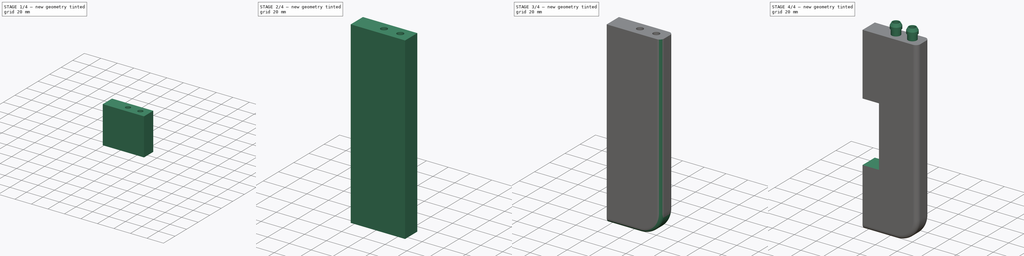
[diagram: build sequence overview — one tinted view per stage of 4, left to right]
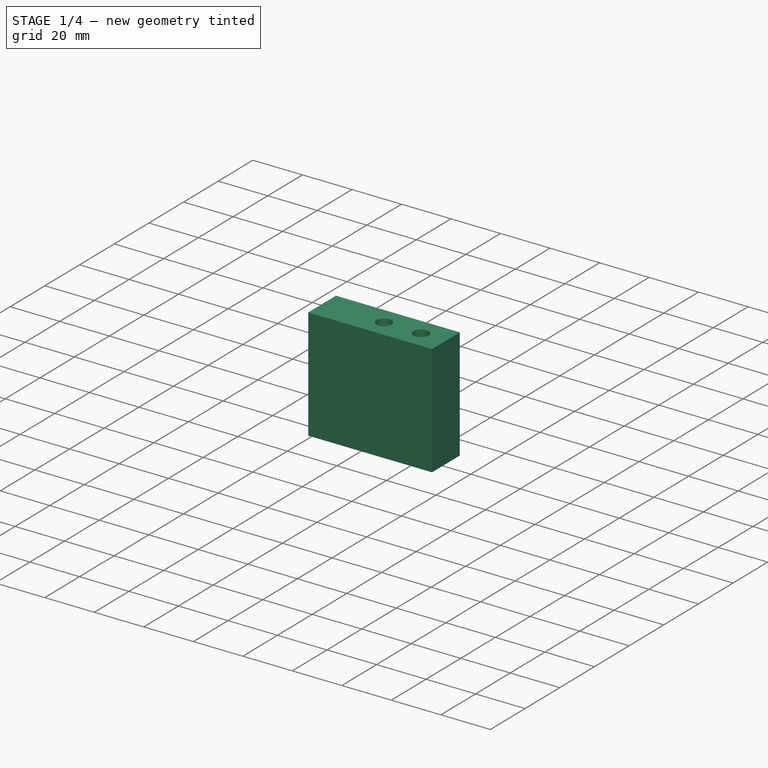
[diagram: stage 1 of 4 — iso view after this stage's code; geometry added in this stage tinted green]
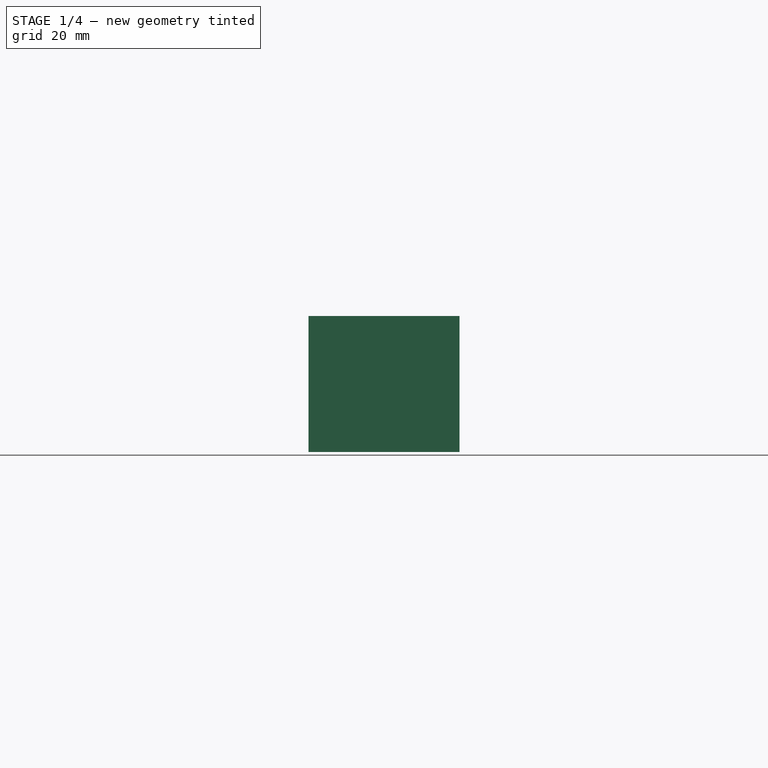
[diagram: stage 1 of 4 — front view after this stage's code; geometry added in this stage tinted green]
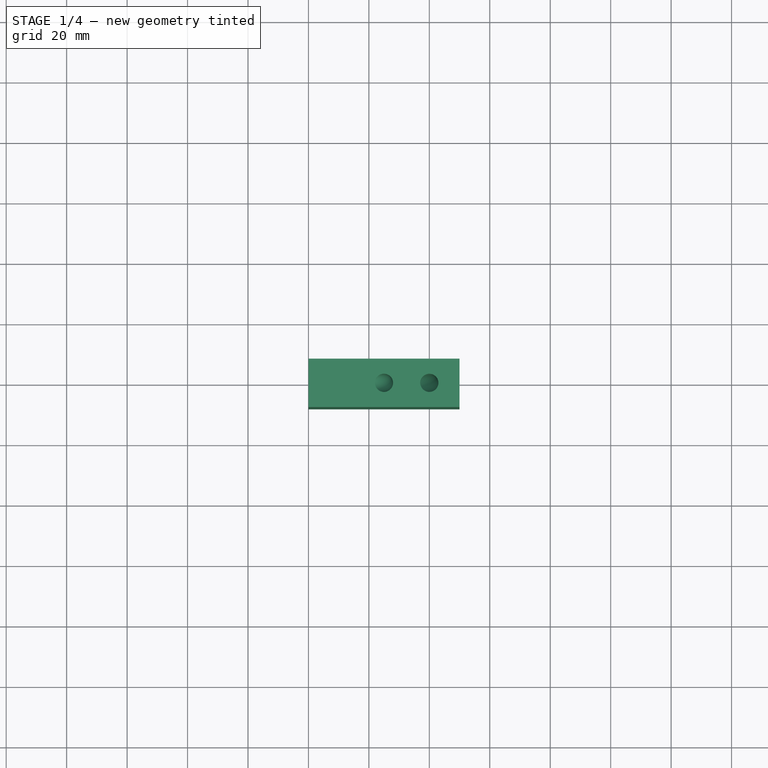
[diagram: stage 1 of 4 — top view after this stage's code; geometry added in this stage tinted green]
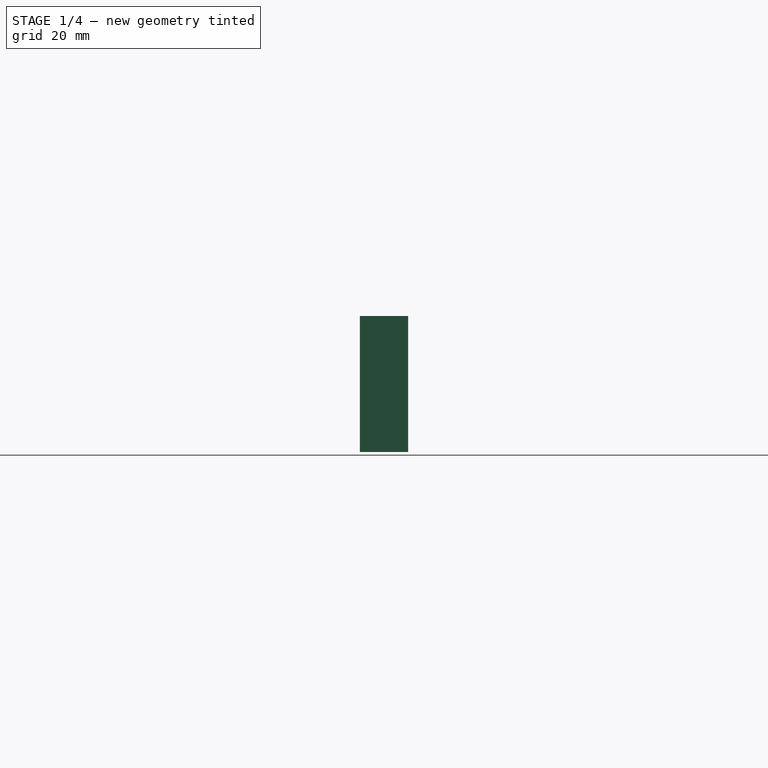
[diagram: stage 1 of 4 — right view after this stage's code; geometry added in this stage tinted green]
FCSTD DOCUMENT  (FreeCAD 2023.521R14555 (Git shallow))
Label: Tubing
License: All rights reserved
LicenseURL: https://en.wikipedia.org/wiki/All_rights_reserved
objects: Sketcher::SketchObject×14, PartDesign::AdditivePipe×4, PartDesign::Pad×2, PartDesign::Fillet×2, PartDesign::Pocket×2, PartDesign::Line×2, PartDesign::Revolution×2, PartDesign::Body×1
note: 67 computed .brp shape members not serialized (recipe doc carries the construction recipe); baked Part::Feature solids carry a one-line shape summary decoded from their .brp

FEATURE [Sketcher::SketchObject] Sketch
  ArcFitTolerance = 1e-06
  AttachmentSupport = -> [XZ_Plane]
  ExternalBSplineMaxDegree = 5
  ExternalBSplineTolerance = 0.0001
  FixShape = 1
  FullyConstrained = true
  InternalTolerance = 1e-06
  InvalidShape = false
  MakeInternals = false
  MapMode = 5
  Placement = pos=(0,0,0) rot=(1,0,0;1.5708rad)
  Support = -> [XZ_Plane]
  TreeRank = 11
  ValidateShape = false
  sketch-geometry (4):
    g0: LineSegment StartX=0 StartY=0 StartZ=0 EndX=50 EndY=0 EndZ=0
    g1: LineSegment StartX=50 StartY=0 StartZ=0 EndX=50 EndY=45 EndZ=0
    g2: LineSegment StartX=50 StartY=45 StartZ=0 EndX=0 EndY=45 EndZ=0
    g3: LineSegment StartX=0 StartY=45 StartZ=0 EndX=0 EndY=0 EndZ=0
  constraints (11):
    c: Coincident(g0,g1)
    c: Coincident(g1,g2)
    c: Coincident(g2,g3)
    c: Coincident(g3,g0)
    c: Horizontal(g0)
    c: Horizontal(g2)
    c: Vertical(g1)
    c: Vertical(g3)
    c: Coincident(g0,g-1)
    c: DistanceX(g0,g0) = 50
    c: DistanceY(g1,g1) = 45
FEATURE [PartDesign::Pad] Pad
  AddSubType = 0
  AlongSketchNormal = false
  AutoTaperInnerAngle = true
  CheckUpToFaceLimits = true
  ClaimChildren = false
  Direction = (0,-1,-2e-16)
  Fit = 0
  FitJoin = 0
  FixShape = 1
  InnerFit = 0
  InnerFitJoin = 0
  InvalidShape = false
  Length = 16
  Length2 = 10
  Linearize = true
  Midplane = true
  NewSolid = false
  Profile = -> Sketch
  ReferenceAxis = -> Sketch [N_Axis]
  Refine = true
  Suppress = false
  TaperInnerAngle = 0
  TaperInnerAngleRev = 0
  TreeRank = 12
  Type = 0
  ValidateShape = true
  _ProfileBasedVersion = 1
FEATURE [Sketcher::SketchObject] Sketch001
  ArcFitTolerance = 1e-06
  AttachmentSupport = -> [Pad]
  ExternalBSplineMaxDegree = 5
  ExternalBSplineTolerance = 0.0001
  FixShape = 1
  FullyConstrained = true
  InternalTolerance = 1e-06
  InvalidShape = false
  MakeInternals = false
  MapMode = 5
  Placement = pos=(0,-1e-14,45) rot=(0,0,1;0rad)
  Support = -> [Pad]
  TreeRank = 13
  ValidateShape = false
  sketch-geometry (1):
    g0: Circle CenterX=25 CenterY=0 CenterZ=0 NormalX=0 NormalY=0 NormalZ=1 AngleXU=0 Radius=3
  constraints (3):
    c: PointOnObject(g0,g-1)
    c: Diameter(g0) = 6
    c: DistanceX(g-1,g0) = 25
FEATURE [Sketcher::SketchObject] Sketch002
  ArcFitTolerance = 1e-06
  AttachmentSupport = -> [XZ_Plane]
  ExternalBSplineMaxDegree = 5
  ExternalBSplineTolerance = 0.0001
  ExternalGeometry = -> [Sketch001]
  FixShape = 1
  FullyConstrained = true
  InternalTolerance = 1e-06
  InvalidShape = false
  MakeInternals = false
  MapMode = 5
  Placement = pos=(0,0,0) rot=(1,0,0;1.5708rad)
  Support = -> [XZ_Plane]
  TreeRank = 14
  ValidateShape = false
  sketch-geometry (3):
    g0: LineSegment StartX=25.0118 StartY=45 StartZ=0 EndX=25.0118 EndY=43.0118 EndZ=0
    g1: LineSegment StartX=20 StartY=38 StartZ=0 EndX=0 EndY=38 EndZ=0
    g2: ArcOfCircle CenterX=20 CenterY=43.0118 CenterZ=0 NormalX=0 NormalY=0 NormalZ=1 AngleXU=0 Radius=5.01183 StartAngle=4.71239 EndAngle=6.28319
  constraints (8):
    c: Vertical(g0)
    c: Horizontal(g1)
    c: Tangent(g1,g2) = 1.5708
    c: Tangent(g0,g2) = 1.5708
    c: Vertical(g1,g-1)
    c: Symmetric(g-3,g-3,g0)
    c: DistanceY(g1,g0) = 7
    c: DistanceX(g1,g1) = 20
FEATURE [PartDesign::AdditivePipe] Pipe
  AddSubType = 1
  AuxilleryCurvelinear = true
  AuxillerySpineTangent = false
  BaseFeature = -> Pad
  Binormal = (0,0,0)
  ClaimChildren = false
  Fit = 0
  FitJoin = 0
  FixShape = 1
  InnerFit = 0
  InnerFitJoin = 0
  InvalidShape = false
  Linearize = true
  Mode = 0
  MoveProfile = false
  NewSolid = false
  Profile = -> Sketch001
  Refine = true
  RotateProfile = false
  Spine = -> Sketch002
  SpineTangent = false
  Suppress = false
  Transformation = 0
  Transition = 1
  TreeRank = 15
  ValidateShape = true
  _ProfileBasedVersion = 2
FEATURE [Sketcher::SketchObject] Sketch003
  ArcFitTolerance = 1e-06
  AttachmentSupport = -> [Pad]
  ExternalBSplineMaxDegree = 5
  ExternalBSplineTolerance = 0.0001
  FixShape = 1
  FullyConstrained = true
  InternalTolerance = 1e-06
  InvalidShape = false
  MakeInternals = false
  MapMode = 5
  Placement = pos=(0,-1e-14,45) rot=(0,0,1;0rad)
  Support = -> [Pad]
  TreeRank = 16
  ValidateShape = false
  sketch-geometry (1):
    g0: Circle CenterX=40 CenterY=0 CenterZ=0 NormalX=0 NormalY=0 NormalZ=1 AngleXU=0 Radius=3
  constraints (3):
    c: PointOnObject(g0,g-1)
    c: Diameter(g0) = 6
    c: DistanceX(g-1,g0) = 40
FEATURE [Sketcher::SketchObject] Sketch004
  ArcFitTolerance = 1e-06
  AttachmentSupport = -> [XZ_Plane]
  ExternalBSplineMaxDegree = 5
  ExternalBSplineTolerance = 0.0001
  ExternalGeometry = -> [Sketch003]
  FixShape = 1
  FullyConstrained = true
  InternalTolerance = 1e-06
  InvalidShape = false
  MakeInternals = false
  MapMode = 5
  Placement = pos=(0,0,0) rot=(1,0,0;1.5708rad)
  Support = -> [XZ_Plane]
  TreeRank = 17
  ValidateShape = false
  sketch-geometry (3):
    g0: LineSegment StartX=40.0118 StartY=45 StartZ=0 EndX=40.0118 EndY=32.0118 EndZ=0
    g1: LineSegment StartX=20 StartY=12 StartZ=0 EndX=0 EndY=12 EndZ=0
    g2: ArcOfCircle CenterX=20 CenterY=32.0118 CenterZ=0 NormalX=0 NormalY=0 NormalZ=1 AngleXU=0 Radius=20.0118 StartAngle=4.71239 EndAngle=6.28319
  constraints (8):
    c: Vertical(g0)
    c: Horizontal(g1)
    c: Tangent(g1,g2) = 1.5708
    c: Tangent(g0,g2) = 1.5708
    c: Vertical(g1,g-1)
    c: Symmetric(g-3,g-3,g0)
    c: DistanceY(g1,g0) = 33
    c: DistanceX(g1,g1) = 20
FEATURE [PartDesign::AdditivePipe] Pipe001
  AddSubType = 1
  AuxilleryCurvelinear = true
  AuxillerySpineTangent = false
  BaseFeature = -> Pipe
  Binormal = (0,0,0)
  ClaimChildren = false
  Fit = 0
  FitJoin = 0
  FixShape = 1
  InnerFit = 0
  InnerFitJoin = 0
  InvalidShape = false
  Linearize = true
  Mode = 0
  MoveProfile = false
  NewSolid = false
  Profile = -> Sketch003
  Refine = true
  RotateProfile = false
  Spine = -> Sketch004
  SpineTangent = false
  Suppress = false
  Transformation = 0
  Transition = 1
  TreeRank = 18
  ValidateShape = true
  _ProfileBasedVersion = 2
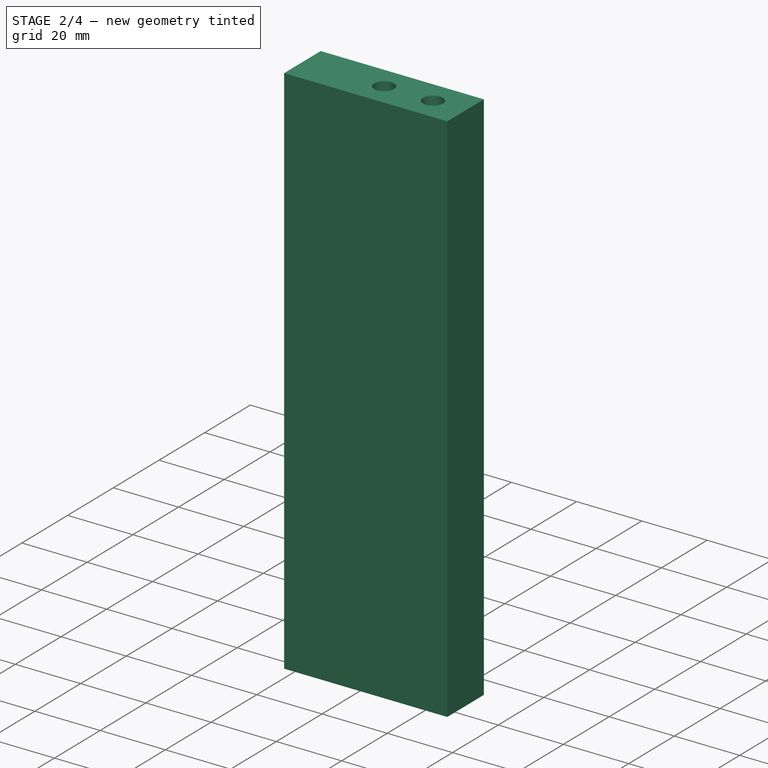
[diagram: stage 2 of 4 — iso view after this stage's code; geometry added in this stage tinted green]
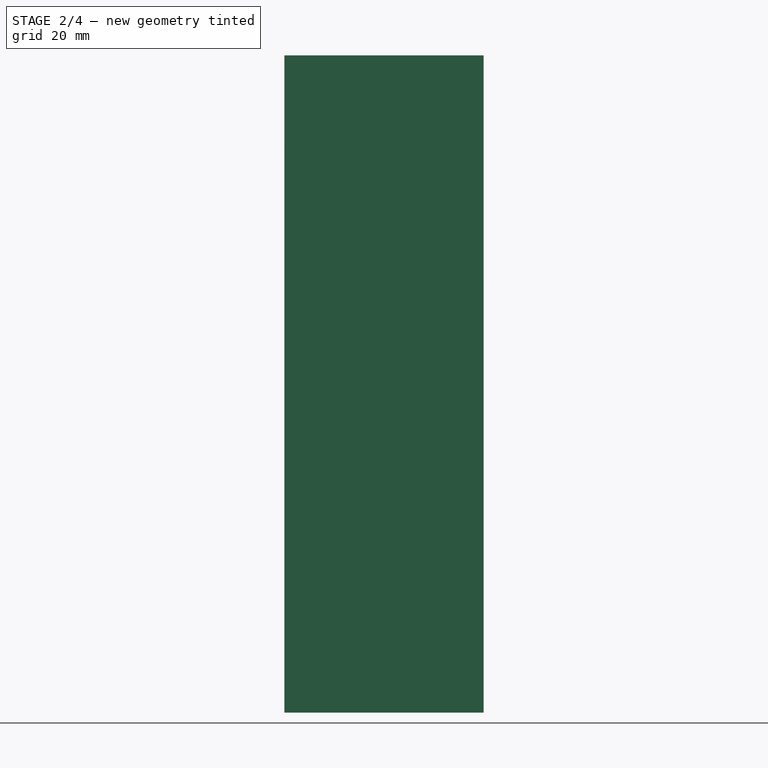
[diagram: stage 2 of 4 — front view after this stage's code; geometry added in this stage tinted green]
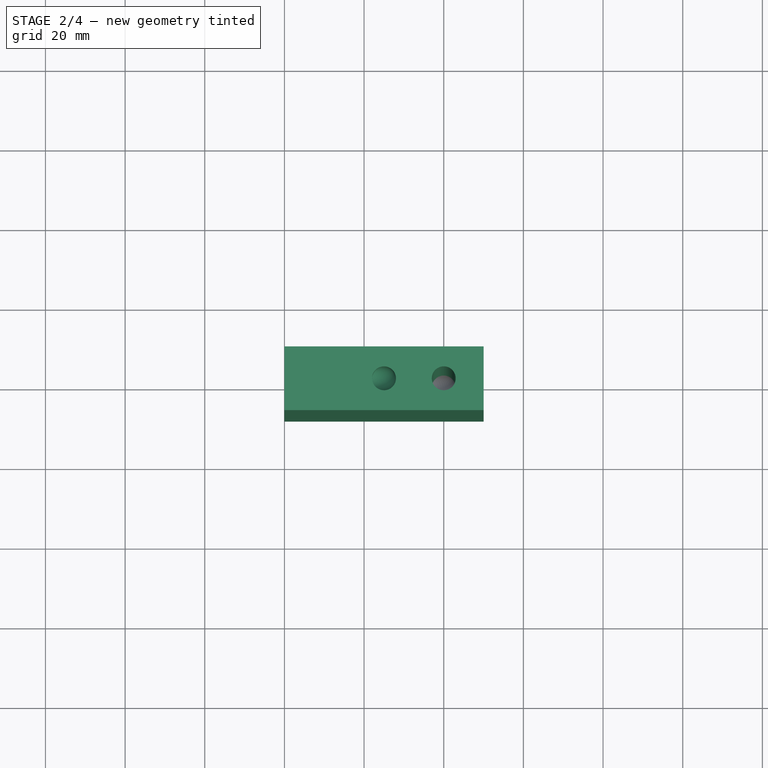
[diagram: stage 2 of 4 — top view after this stage's code; geometry added in this stage tinted green]
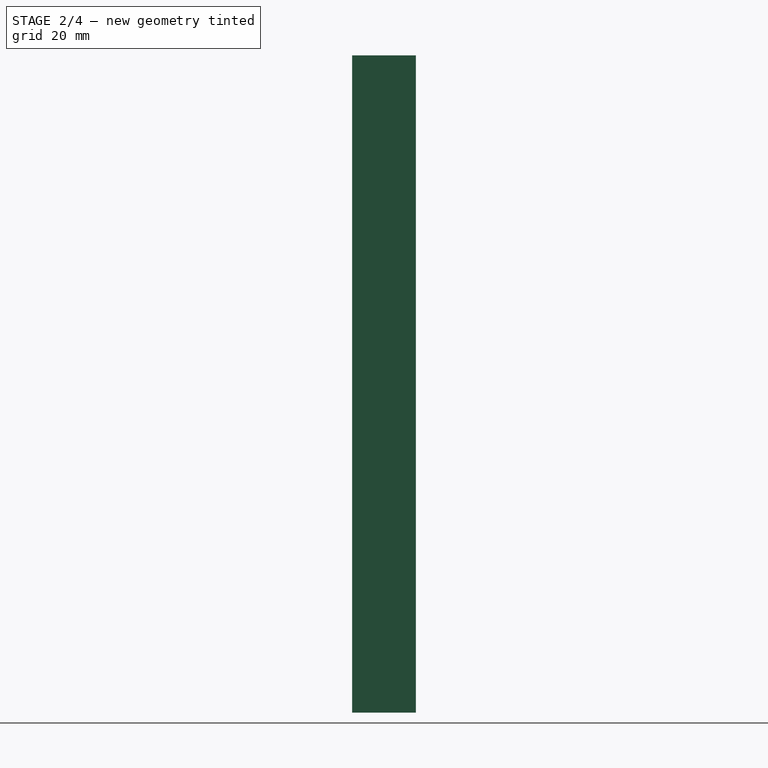
[diagram: stage 2 of 4 — right view after this stage's code; geometry added in this stage tinted green]
FEATURE [Sketcher::SketchObject] Sketch005
  ArcFitTolerance = 1e-06
  AttachmentSupport = -> [Pipe001]
  ExternalBSplineMaxDegree = 5
  ExternalBSplineTolerance = 0.0001
  ExternalGeometry = -> [Pipe001]
  FixShape = 1
  FullyConstrained = true
  InternalTolerance = 1e-06
  InvalidShape = false
  MakeInternals = false
  MapMode = 5
  Placement = pos=(0,-1e-14,45) rot=(0,0,1;0rad)
  Support = -> [Pipe001]
  TreeRank = 19
  ValidateShape = false
FEATURE [PartDesign::Pad] Pad001
  AddSubType = 0
  AlongSketchNormal = false
  AutoTaperInnerAngle = true
  BaseFeature = -> Pipe001
  CheckUpToFaceLimits = true
  ClaimChildren = false
  Direction = (0,-2e-16,1)
  Fit = 0
  FitJoin = 0
  FixShape = 1
  InnerFit = 0
  InnerFitJoin = 0
  InvalidShape = false
  Length = 120
  Length2 = 10
  Linearize = true
  NewSolid = false
  Profile = -> Sketch005
  ReferenceAxis = -> Sketch005 [N_Axis]
  Refine = true
  Suppress = false
  TaperInnerAngle = 0
  TaperInnerAngleRev = 0
  TreeRank = 20
  Type = 0
  ValidateShape = true
  _ProfileBasedVersion = 1
FEATURE [Sketcher::SketchObject] Sketch006
  ArcFitTolerance = 1e-06
  AttachmentSupport = -> [XZ_Plane]
  ExternalBSplineMaxDegree = 5
  ExternalBSplineTolerance = 0.0001
  ExternalGeometry = -> [Sketch001,Pad001]
  FixShape = 1
  FullyConstrained = true
  InternalTolerance = 1e-06
  InvalidShape = false
  MakeInternals = false
  MapMode = 5
  Placement = pos=(0,0,0) rot=(1,0,0;1.5708rad)
  Support = -> [XZ_Plane]
  TreeRank = 25
  ValidateShape = false
  sketch-geometry (5):
    g0: LineSegment StartX=25.0118 StartY=165 StartZ=0 EndX=25.0118 EndY=154.512 EndZ=0
    g1: LineSegment StartX=20 StartY=149.5 StartZ=0 EndX=5.695e-12 EndY=149.5 EndZ=0
    g2: ArcOfCircle CenterX=20 CenterY=154.512 CenterZ=0 NormalX=0 NormalY=0 NormalZ=1 AngleXU=0 Radius=5.01183 StartAngle=4.71239 EndAngle=6.28319
    g3: GeomPoint [constr] X=1.42e-14 Y=38 Z=0
    g4: GeomPoint [constr] X=25.0118 Y=45 Z=0
  constraints (11):
    c: Vertical(g0)
    c: Horizontal(g1)
    c: Tangent(g1,g2) = 1.5708
    c: Tangent(g0,g2) = 1.5708
    c: Vertical(g1,g-1)
    c: DistanceX(g1,g1) = 20
    c: PointOnObject(g0,g-4)
    c: Symmetric(g-5,g-5,g3)
    c: Symmetric(g-3,g-3,g4)
    c: Vertical(g0,g4)
    c: DistanceY(g3,g1) = 111.5
FEATURE [Sketcher::SketchObject] Sketch007
  ArcFitTolerance = 1e-06
  AttachmentSupport = -> [Pad001]
  ExternalBSplineMaxDegree = 5
  ExternalBSplineTolerance = 0.0001
  ExternalGeometry = -> [Pipe001]
  FixShape = 1
  FullyConstrained = true
  InternalTolerance = 1e-06
  InvalidShape = false
  MakeInternals = false
  MapMode = 5
  Placement = pos=(0,0,165) rot=(0,0,1;0rad)
  Support = -> [Pad001]
  TreeRank = 24
  ValidateShape = false
FEATURE [PartDesign::AdditivePipe] Pipe002
  AddSubType = 1
  AuxilleryCurvelinear = true
  AuxillerySpineTangent = false
  BaseFeature = -> Pad001
  Binormal = (0,0,0)
  ClaimChildren = false
  Fit = 0
  FitJoin = 0
  FixShape = 1
  InnerFit = 0
  InnerFitJoin = 0
  InvalidShape = false
  Linearize = true
  Mode = 0
  MoveProfile = false
  NewSolid = false
  Profile = -> Sketch007
  Refine = true
  RotateProfile = false
  Spine = -> Sketch006
  SpineTangent = false
  Suppress = false
  Transformation = 0
  Transition = 1
  TreeRank = 26
  ValidateShape = true
  _ProfileBasedVersion = 2
FEATURE [Sketcher::SketchObject] Sketch008
  ArcFitTolerance = 1e-06
  AttachmentSupport = -> [XZ_Plane]
  ExternalBSplineMaxDegree = 5
  ExternalBSplineTolerance = 0.0001
  ExternalGeometry = -> [Sketch001,Pad001]
  FixShape = 1
  FullyConstrained = true
  InternalTolerance = 1e-06
  InvalidShape = false
  MakeInternals = false
  MapMode = 5
  Placement = pos=(0,0,0) rot=(1,0,0;1.5708rad)
  Support = -> [XZ_Plane]
  TreeRank = 27
  ValidateShape = false
  sketch-geometry (5):
    g0: LineSegment StartX=20 StartY=123.5 StartZ=0 EndX=-1.0552e-12 EndY=123.5 EndZ=0
    g1: GeomPoint [constr] X=25.0118 Y=45 Z=0
    g2: ArcOfCircle CenterX=20 CenterY=118.488 CenterZ=0 NormalX=0 NormalY=0 NormalZ=1 AngleXU=0 Radius=5.01183 StartAngle=-1.5836e-12 EndAngle=1.5708
    g3: LineSegment StartX=25.0118 StartY=118.488 StartZ=0 EndX=25.0118 EndY=45 EndZ=0
    g4: GeomPoint [constr] X=-7.1e-15 Y=12 Z=0
  constraints (10):
    c: Horizontal(g0)
    c: Vertical(g0,g-1)
    c: DistanceX(g0,g0) = 20
    c: Symmetric(g-3,g-3,g1)
    c: Tangent(g2,g0) = -1.5708
    c: Tangent(g3,g2) = 1.5708
    c: Vertical(g3)
    c: Coincident(g1,g3)
    c: Symmetric(g-5,g-5,g4)
    c: DistanceY(g4,g0) = 111.5
FEATURE [Sketcher::SketchObject] Sketch009
  ArcFitTolerance = 1e-06
  AttachmentSupport = -> [Pipe002]
  ExternalBSplineMaxDegree = 5
  ExternalBSplineTolerance = 0.0001
  ExternalGeometry = -> [Pipe002]
  FixShape = 1
  FullyConstrained = true
  InternalTolerance = 1e-06
  InvalidShape = false
  MakeInternals = false
  MapMode = 5
  Placement = pos=(0,0,0) rot=(0.57735,-0.57735,-0.57735;2.0944rad)
  Support = -> [Pipe002]
  TreeRank = 28
  ValidateShape = false
  sketch-geometry (1):
    g0: Circle CenterX=1.6e-15 CenterY=123.512 CenterZ=0 NormalX=0 NormalY=0 NormalZ=1 AngleXU=0 Radius=3
  constraints (3):
    c: Vertical(g-3,g0)
    c: DistanceY(g-3,g0) = 111.5
    c: Equal(g0,g-3)
FEATURE [PartDesign::AdditivePipe] Pipe003
  AddSubType = 1
  AuxilleryCurvelinear = true
  AuxillerySpineTangent = false
  BaseFeature = -> Pipe002
  Binormal = (0,0,0)
  ClaimChildren = false
  Fit = 0
  FitJoin = 0
  FixShape = 1
  InnerFit = 0
  InnerFitJoin = 0
  InvalidShape = false
  Linearize = true
  Mode = 0
  MoveProfile = false
  NewSolid = false
  Profile = -> Sketch009
  Refine = true
  RotateProfile = false
  Spine = -> Sketch008
  SpineTangent = false
  Suppress = false
  Transformation = 0
  Transition = 1
  TreeRank = 29
  ValidateShape = true
  _ProfileBasedVersion = 2
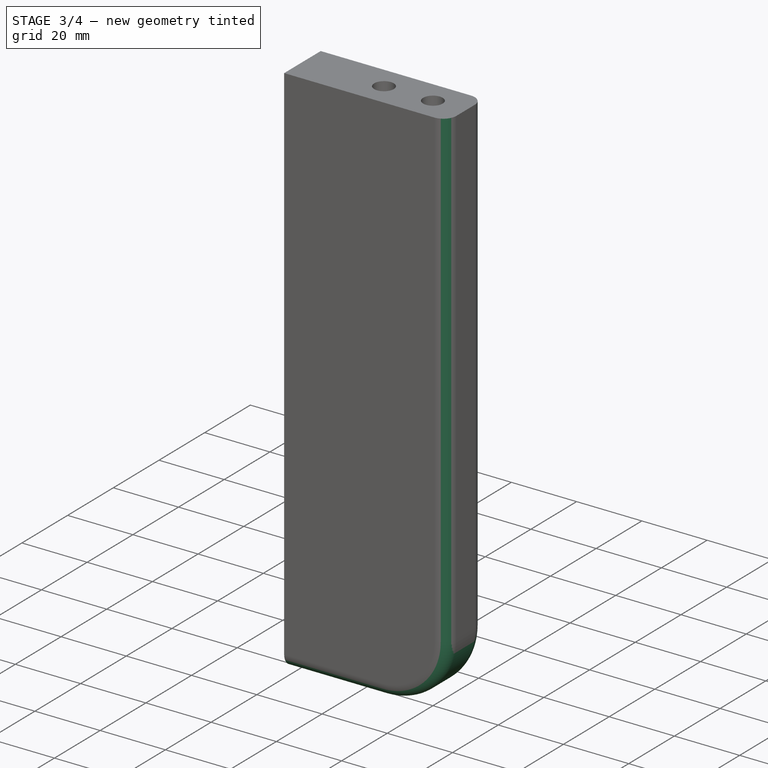
[diagram: stage 3 of 4 — iso view after this stage's code; geometry added in this stage tinted green]
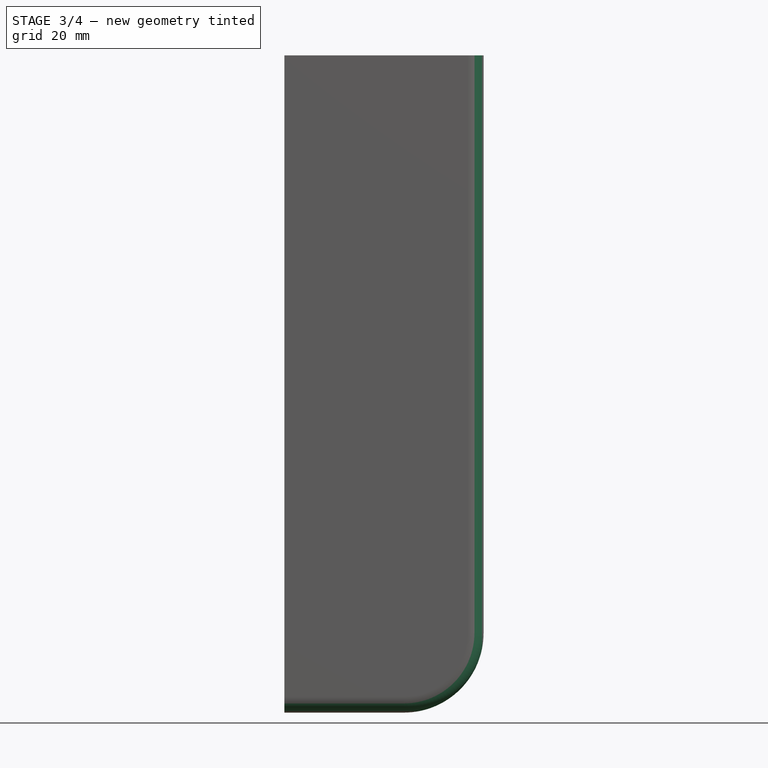
[diagram: stage 3 of 4 — front view after this stage's code; geometry added in this stage tinted green]
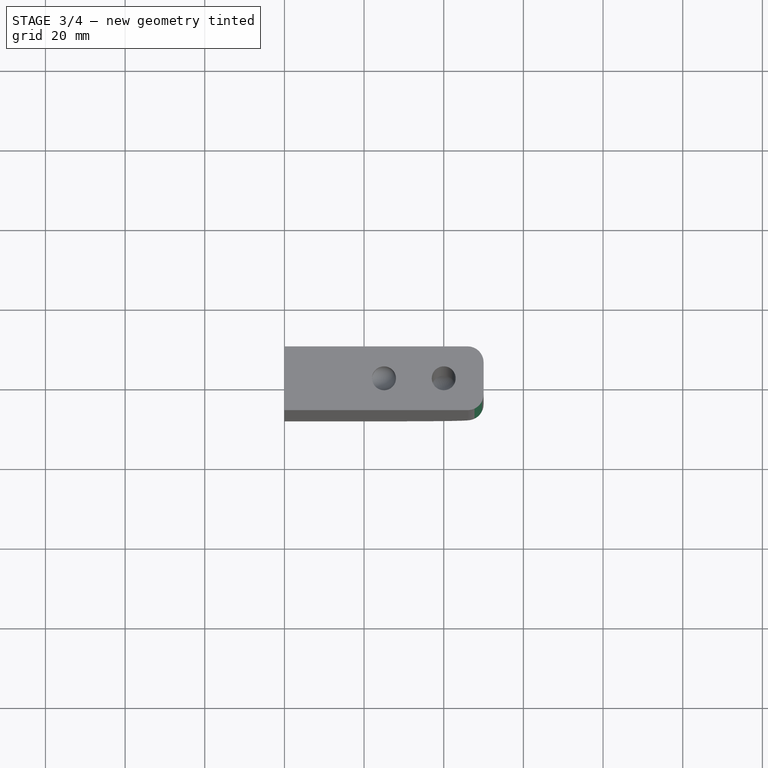
[diagram: stage 3 of 4 — top view after this stage's code; geometry added in this stage tinted green]
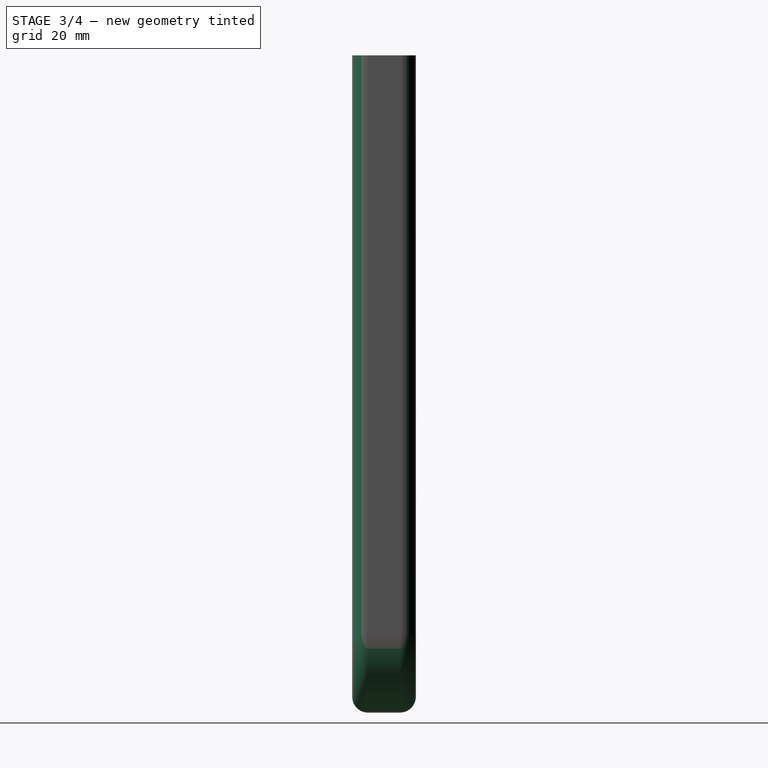
[diagram: stage 3 of 4 — right view after this stage's code; geometry added in this stage tinted green]
FEATURE [PartDesign::Fillet] Fillet
  AddSubType = 0
  Base = -> Pipe003 [Edge2]
  BaseFeature = -> Pipe003
  FixShape = 1
  InvalidShape = false
  NewSolid = false
  Radius = 20
  Refine = true
  SupportTransform = false
  Suppress = false
  TreeRank = 30
  UseAllEdges = false
  ValidateShape = true
FEATURE [PartDesign::Fillet] Fillet001
  AddSubType = 0
  Base = -> Fillet [Edge10,Edge1]
  BaseFeature = -> Fillet
  FixShape = 1
  InvalidShape = false
  NewSolid = false
  Radius = 4
  Refine = true
  SupportTransform = false
  Suppress = false
  TreeRank = 31
  UseAllEdges = false
  ValidateShape = true
FEATURE [Sketcher::SketchObject] Sketch010
  ArcFitTolerance = 1e-06
  AttachmentSupport = -> [Fillet001]
  ExternalBSplineMaxDegree = 5
  ExternalBSplineTolerance = 0.0001
  ExternalGeometry = -> [Fillet001]
  FixShape = 1
  FullyConstrained = true
  InternalTolerance = 1e-06
  InvalidShape = false
  MakeInternals = false
  MapMode = 5
  Placement = pos=(0,0,0) rot=(0.57735,-0.57735,-0.57735;2.0944rad)
  Support = -> [Fillet001]
  TreeRank = 32
  ValidateShape = false
  sketch-geometry (4):
    g0: Circle CenterX=0 CenterY=38.0118 CenterZ=0 NormalX=0 NormalY=0 NormalZ=1 AngleXU=0 Radius=5.5
    g1: Circle CenterX=0 CenterY=12.0118 CenterZ=0 NormalX=0 NormalY=0 NormalZ=1 AngleXU=0 Radius=5.5
    g2: Circle CenterX=0 CenterY=123.512 CenterZ=0 NormalX=0 NormalY=0 NormalZ=1 AngleXU=0 Radius=5.5
    g3: Circle CenterX=6.2e-15 CenterY=149.512 CenterZ=0 NormalX=0 NormalY=0 NormalZ=1 AngleXU=0 Radius=5.5
  constraints (8):
    c: Coincident(g0,g-5)
    c: Coincident(g1,g-6)
    c: Coincident(g2,g-4)
    c: Equal(g0,g1)
    c: Equal(g1,g2)
    c: Equal(g2,g3)
    c: Diameter(g2) = 11
    c: Coincident(g3,g-3)
FEATURE [PartDesign::Pocket] Pocket
  AddSubType = 1
  AlongSketchNormal = false
  AutoTaperInnerAngle = true
  BaseFeature = -> Fillet001
  CheckUpToFaceLimits = true
  ClaimChildren = false
  Direction = (1,0,0)
  Fit = 0
  FitJoin = 0
  FixShape = 1
  InnerFit = 0
  InnerFitJoin = 0
  InvalidShape = false
  Length = 20
  Length2 = 10
  Linearize = true
  NewSolid = false
  Profile = -> Sketch010
  ReferenceAxis = -> Sketch010 [N_Axis]
  Refine = true
  Suppress = false
  TaperInnerAngle = 0
  TaperInnerAngleRev = 0
  TreeRank = 33
  Type = 0
  ValidateShape = true
  _ProfileBasedVersion = 1
  _Version = 1
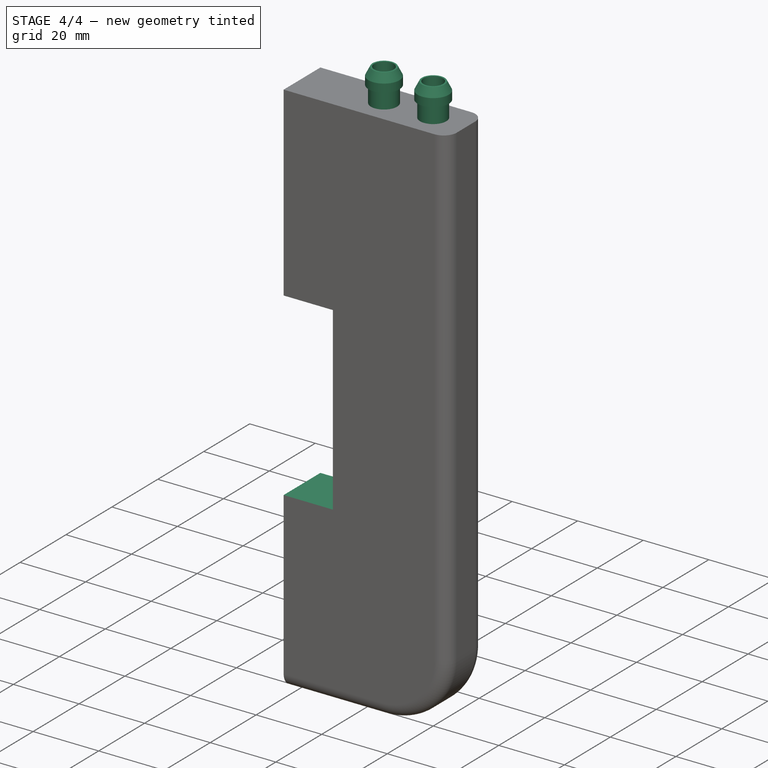
[diagram: stage 4 of 4 — iso view after this stage's code; geometry added in this stage tinted green]
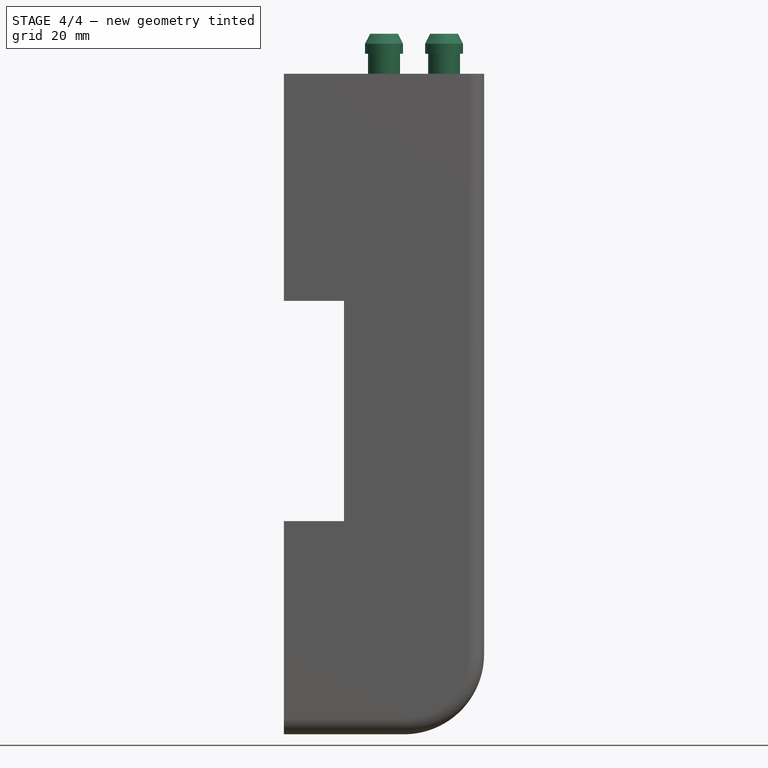
[diagram: stage 4 of 4 — front view after this stage's code; geometry added in this stage tinted green]
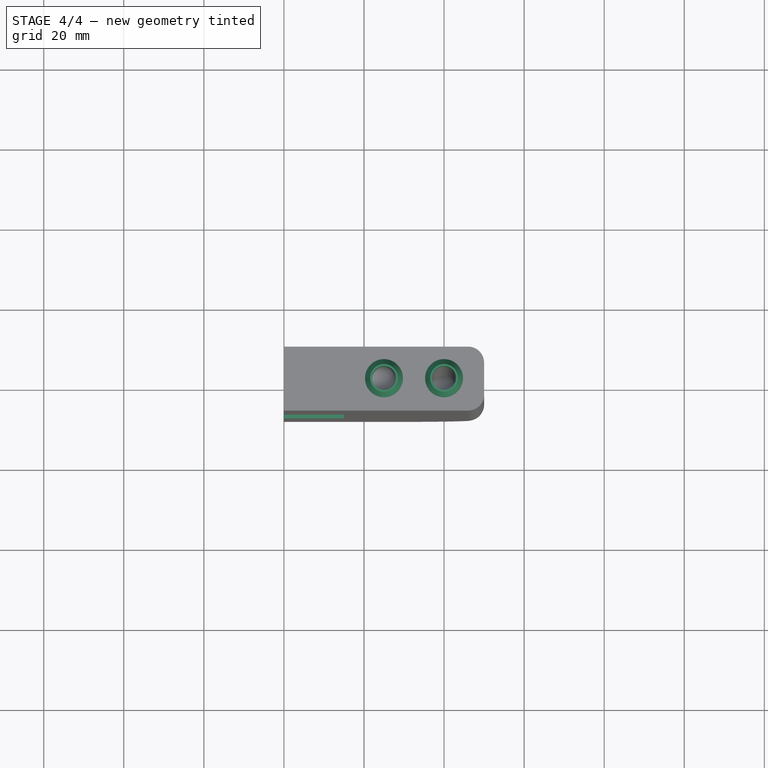
[diagram: stage 4 of 4 — top view after this stage's code; geometry added in this stage tinted green]
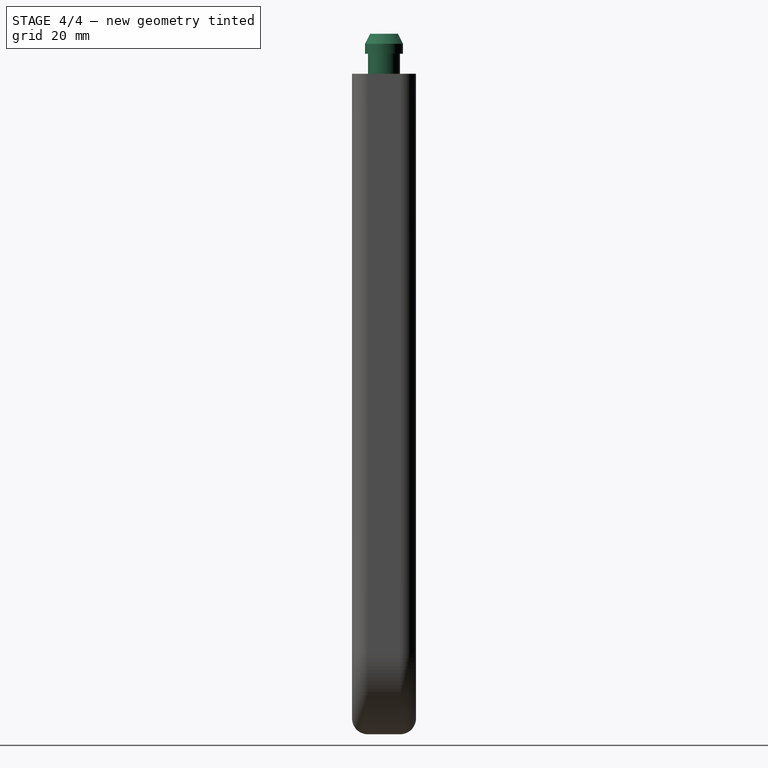
[diagram: stage 4 of 4 — right view after this stage's code; geometry added in this stage tinted green]
FEATURE [Sketcher::SketchObject] Sketch011
  ArcFitTolerance = 1e-06
  AttachmentSupport = -> [Pocket]
  ExternalBSplineMaxDegree = 5
  ExternalBSplineTolerance = 0.0001
  ExternalGeometry = -> [Pocket]
  FixShape = 1
  FullyConstrained = true
  InternalTolerance = 1e-06
  InvalidShape = false
  MakeInternals = false
  MapMode = 5
  Placement = pos=(0,-8,-1.8e-15) rot=(1,0,0;1.5708rad)
  Support = -> [Pocket]
  TreeRank = 34
  ValidateShape = false
  sketch-geometry (5):
    g0: LineSegment StartX=1.9e-14 StartY=108.262 StartZ=0 EndX=15 EndY=108.262 EndZ=0
    g1: LineSegment StartX=15 StartY=108.262 StartZ=0 EndX=15 EndY=53.2618 EndZ=0
    g2: LineSegment StartX=15 StartY=53.2618 StartZ=0 EndX=1.95e-14 EndY=53.2618 EndZ=0
    g3: LineSegment StartX=1.9e-14 StartY=53.2618 StartZ=0 EndX=1.9e-14 EndY=108.262 EndZ=0
    g4: GeomPoint [constr] X=1.9e-14 Y=80.7618 Z=0
  constraints (12):
    c: Coincident(g0,g1)
    c: Coincident(g1,g2)
    c: Coincident(g2,g3)
    c: Coincident(g3,g0)
    c: Horizontal(g0)
    c: Horizontal(g2)
    c: Vertical(g1)
    c: Vertical(g3)
    c: Symmetric(g-3,g-4,g4)
    c: Symmetric(g3,g3,g4)
    c: DistanceY(g3,g3) = 55
    c: DistanceX(g0,g0) = 15
FEATURE [PartDesign::Pocket] Pocket001
  AddSubType = 1
  AlongSketchNormal = false
  AutoTaperInnerAngle = true
  BaseFeature = -> Pocket
  CheckUpToFaceLimits = true
  ClaimChildren = false
  Direction = (0,1,2e-16)
  Fit = 0
  FitJoin = 0
  FixShape = 1
  InnerFit = 0
  InnerFitJoin = 0
  InvalidShape = false
  Length = 5
  Length2 = 10
  Linearize = true
  NewSolid = false
  Profile = -> Sketch011
  ReferenceAxis = -> Sketch011 [N_Axis]
  Refine = true
  Suppress = false
  TaperInnerAngle = 0
  TaperInnerAngleRev = 0
  TreeRank = 35
  Type = 1
  ValidateShape = true
  _ProfileBasedVersion = 1
  _Version = 1
FEATURE [Sketcher::SketchObject] Sketch013
  ArcFitTolerance = 1e-06
  AttachmentSupport = -> [XZ_Plane]
  ExternalBSplineMaxDegree = 5
  ExternalBSplineTolerance = 0.0001
  ExternalGeometry = -> [Pocket001]
  FixShape = 1
  FullyConstrained = true
  InternalTolerance = 1e-06
  InvalidShape = false
  MakeInternals = false
  MapMode = 5
  Placement = pos=(0,0,0) rot=(1,0,0;1.5708rad)
  Support = -> [XZ_Plane]
  TreeRank = 37
  ValidateShape = false
  sketch-geometry (8):
    g0: LineSegment StartX=22.0237 StartY=165 StartZ=0 EndX=21.0118 EndY=165 EndZ=0
    g1: LineSegment StartX=21.0118 StartY=165 StartZ=0 EndX=21.0118 EndY=170 EndZ=0
    g2: LineSegment StartX=21.0118 StartY=170 StartZ=0 EndX=20.2618 EndY=170 EndZ=0
    g3: LineSegment StartX=21.5237 StartY=175 StartZ=0 EndX=22.0237 EndY=175 EndZ=0
    g4: LineSegment StartX=22.0237 StartY=175 StartZ=0 EndX=22.0237 EndY=165 EndZ=0
    g5: GeomPoint [constr] X=25.0118 Y=165 Z=0
    g6: LineSegment StartX=20.2618 StartY=170 StartZ=0 EndX=20.2618 EndY=172.5 EndZ=0
    g7: LineSegment StartX=20.2618 StartY=172.5 StartZ=0 EndX=21.5237 EndY=175 EndZ=0
  constraints (21):
    c: Coincident(g0,g-3)
    c: Horizontal(g0)
    c: Vertical(g1)
    c: Coincident(g2,g1)
    c: Horizontal(g3)
    c: Coincident(g4,g3)
    c: Coincident(g4,g0)
    c: Vertical(g4)
    c: Symmetric(g-3,g-3,g5)
    c: DistanceX(g0,g5) = 4
    c: Horizontal(g2)
    c: Coincident(g6,g2)
    c: Vertical(g6)
    c: Coincident(g7,g3)
    c: DistanceY(g4,g4) = 10
    c: Coincident(g6,g7)
    c: DistanceX(g2,g5) = 4.75
    c: Coincident(g0,g1)
    c: DistanceY(g1,g1) = 5
    c: DistanceY(g6,g6) = 2.5
    c: DistanceX(g3,g3) = 0.5
FEATURE [PartDesign::Line] DatumLine
  AttacherType = Attacher::AttachEngineLine
  AttachmentSupport = -> [Pocket001]
  FixShape = 1
  InvalidShape = false
  Length = 175
  MapMode = 19
  MinimumLength = 10
  Placement = pos=(25,-1e-14,165) rot=(-1,0,0;3.14159rad)
  ResizeMode = 0
  Support = -> [Pocket001]
  TreeRank = 38
  ValidateShape = false
FEATURE [PartDesign::Line] DatumLine001
  AttacherType = Attacher::AttachEngineLine
  AttachmentSupport = -> [Pocket001]
  FixShape = 1
  InvalidShape = false
  Length = 175
  MapMode = 19
  MinimumLength = 10
  Placement = pos=(40,-3.66e-14,165) rot=(0,0,1;0rad)
  ResizeMode = 0
  Support = -> [Pocket001]
  TreeRank = 39
  ValidateShape = false
FEATURE [PartDesign::Revolution] Revolution
  AddSubType = 0
  Angle = 360
  Axis = (0,4e-16,-1)
  Base = (25,-1e-14,165)
  BaseFeature = -> Pocket001
  ClaimChildren = false
  Fit = 0
  FitJoin = 0
  FixShape = 1
  InnerFit = 0
  InnerFitJoin = 0
  InvalidShape = false
  Linearize = true
  NewSolid = false
  Profile = -> Sketch013
  ReferenceAxis = -> DatumLine
  Refine = true
  Reversed = true
  Suppress = false
  TreeRank = 40
  ValidateShape = true
  _ProfileBasedVersion = 1
FEATURE [Sketcher::SketchObject] Sketch014
  ArcFitTolerance = 1e-06
  AttachmentSupport = -> [XZ_Plane]
  ExternalBSplineMaxDegree = 5
  ExternalBSplineTolerance = 0.0001
  ExternalGeometry = -> [Pocket001]
  FixShape = 1
  FullyConstrained = true
  InternalTolerance = 1e-06
  InvalidShape = false
  MakeInternals = false
  MapMode = 5
  Placement = pos=(0,0,0) rot=(1,0,0;1.5708rad)
  Support = -> [XZ_Plane]
  TreeRank = 41
  ValidateShape = false
  sketch-geometry (8):
    g0: LineSegment StartX=37.0237 StartY=165 StartZ=0 EndX=36.0118 EndY=165 EndZ=0
    g1: LineSegment StartX=36.0118 StartY=165 StartZ=0 EndX=36.0118 EndY=170 EndZ=0
    g2: LineSegment StartX=36.0118 StartY=170 StartZ=0 EndX=35.2618 EndY=170 EndZ=0
    g3: LineSegment StartX=36.5237 StartY=175 StartZ=0 EndX=37.0237 EndY=175 EndZ=0
    g4: LineSegment StartX=37.0237 StartY=175 StartZ=0 EndX=37.0237 EndY=165 EndZ=0
    g5: GeomPoint [constr] X=40.0118 Y=165 Z=0
    g6: LineSegment StartX=35.2618 StartY=170 StartZ=0 EndX=35.2618 EndY=172.5 EndZ=0
    g7: LineSegment StartX=35.2618 StartY=172.5 StartZ=0 EndX=36.5237 EndY=175 EndZ=0
  constraints (21):
    c: Horizontal(g0)
    c: Vertical(g1)
    c: Coincident(g2,g1)
    c: Horizontal(g3)
    c: Coincident(g4,g3)
    c: Coincident(g4,g0)
    c: Vertical(g4)
    c: DistanceX(g0,g5) = 4
    c: Horizontal(g2)
    c: Coincident(g6,g2)
    c: Vertical(g6)
    c: Coincident(g7,g3)
    c: DistanceY(g4,g4) = 10
    c: Coincident(g6,g7)
    c: DistanceX(g2,g5) = 4.75
    c: Coincident(g0,g1)
    c: DistanceY(g1,g1) = 5
    c: DistanceY(g6,g6) = 2.5
    c: DistanceX(g3,g3) = 0.5
    c: Symmetric(g-3,g-3,g5)
    c: Coincident(g0,g-3)
FEATURE [PartDesign::Revolution] Revolution001
  AddSubType = 0
  Angle = 360
  Axis = (0,-4e-16,1)
  Base = (40,-3.66e-14,165)
  BaseFeature = -> Revolution
  ClaimChildren = false
  Fit = 0
  FitJoin = 0
  FixShape = 1
  InnerFit = 0
  InnerFitJoin = 0
  InvalidShape = false
  Linearize = true
  NewSolid = false
  Profile = -> Sketch014
  ReferenceAxis = -> DatumLine001
  Refine = true
  Reversed = true
  Suppress = false
  TreeRank = 42
  ValidateShape = true
  _ProfileBasedVersion = 1
FEATURE [PartDesign::Body] Body
  AutoGroupSolids = false
  ClaimAllChildren = false
  ExportMode = 0
  FixShape = 1
  Group = -> [Sketch,Pad,Sketch001,Sketch002,Pipe,Sketch003,Sketch004,Pipe001,Sketch005,Pad001,Sketch006,Sketch007,Pipe002,Sketch008,Sketch009,Pipe003,Fillet,Fillet001,Sketch010,Pocket,Sketch011,Pocket001,DatumLine,DatumLine001,Sketch013,Revolution,Sketch014,Revolution001]
  InvalidShape = false
  Origin = -> Origin
  Tip = -> Revolution001
  TreeRank = 10
  ValidateShape = false
  _ExportChildren = -> [Pad,Pipe,Pipe001,Pad001,Pipe002,Pipe003,Fillet,Fillet001,Pocket,Pocket001,DatumLine,DatumLine001,Revolution,Revolution001]
  _GroupVersion = 1
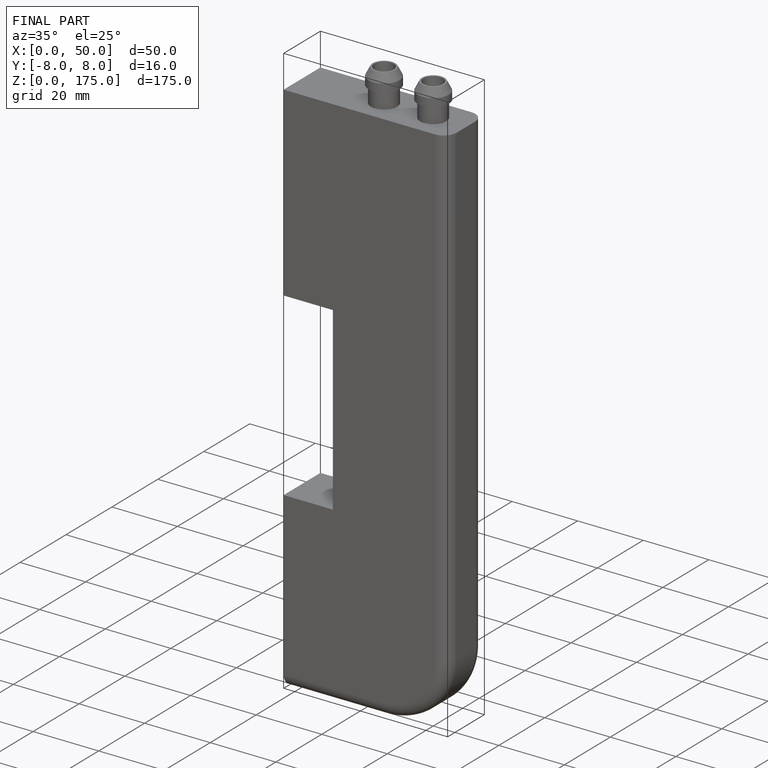
[diagram: finished part — iso view with bounding-box wireframe]
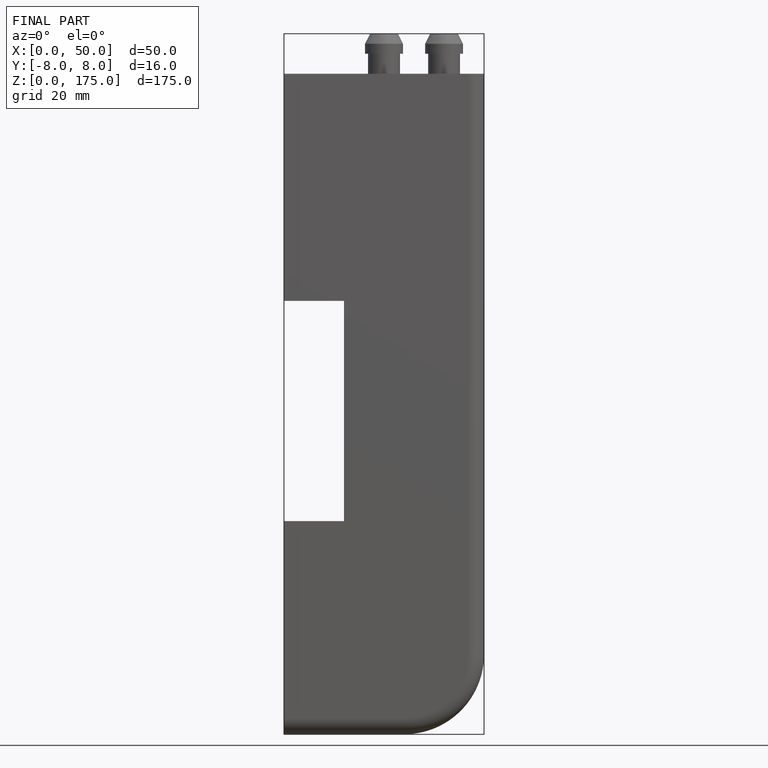
[diagram: finished part — front view with bounding-box wireframe]
